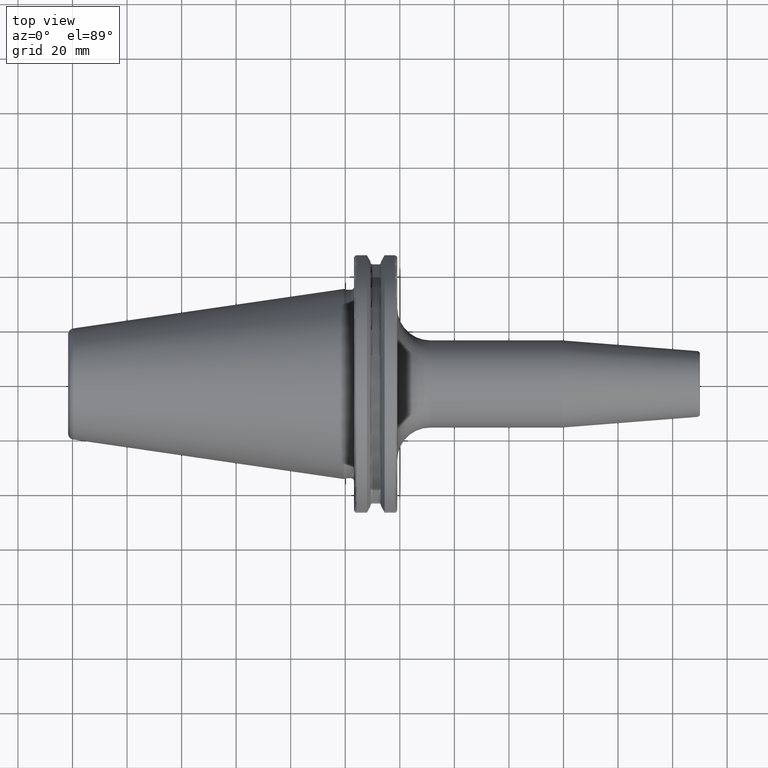
[diagram: clean part render]
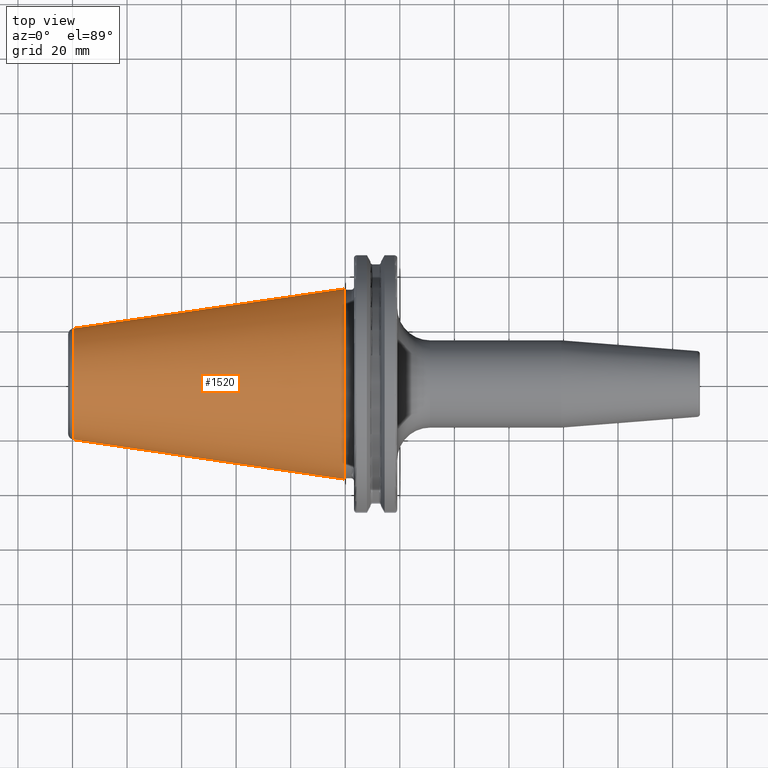
[diagram: same view with one face highlighted and labeled with its STEP entity id]
A machine part, top view. The second image highlights one B-rep face of the part: STEP entity #1520.
In plain terms, the highlighted conical surface has half-angle 8.298 deg.
Its self-contained STEP definition (entity closure, byte-faithful):
#37=CARTESIAN_POINT('',(-9.967471700563E1,0.E0,0.E0));
#38=DIRECTION('',(1.E0,0.E0,0.E0));
#39=DIRECTION('',(0.E0,1.E0,0.E0));
#40=AXIS2_PLACEMENT_3D('',#37,#38,#39);
#42=CARTESIAN_POINT('',(-4.896823332305E-1,0.E0,0.E0));
#43=DIRECTION('',(1.E0,0.E0,0.E0));
#44=DIRECTION('',(0.E0,1.E0,0.E0));
#45=AXIS2_PLACEMENT_3D('',#42,#43,#44);
#47=DIRECTION('',(-9.895312636440E-1,-1.443186691705E-1,0.E0));
#48=VECTOR('',#47,1.002343617797E2);
#49=CARTESIAN_POINT('',(-4.896823332305E-1,3.485358204157E1,0.E0));
#50=LINE('',#49,#48);
#51=DIRECTION('',(-9.895312636440E-1,1.443186691705E-1,0.E0));
#52=VECTOR('',#51,1.002343617797E2);
#53=CARTESIAN_POINT('',(-4.896823332305E-1,-3.485358204157E1,0.E0));
#54=LINE('',#53,#52);
#1206=CARTESIAN_POINT('',(-9.967471700563E1,2.038789234437E1,0.E0));
#1208=VERTEX_POINT('',#1206);
#1210=CARTESIAN_POINT('',(-9.967471700563E1,-2.038789234437E1,0.E0));
#1212=VERTEX_POINT('',#1210);
#1274=CARTESIAN_POINT('',(-4.896823332305E-1,3.485358204157E1,0.E0));
#1275=VERTEX_POINT('',#1274);
#1276=CARTESIAN_POINT('',(-4.896823332305E-1,-3.485358204157E1,0.E0));
#1277=VERTEX_POINT('',#1276);
#1506=CARTESIAN_POINT('',(-5.008219966943E1,0.E0,0.E0));
#1507=DIRECTION('',(1.E0,0.E0,0.E0));
#1508=DIRECTION('',(0.E0,-1.E0,0.E0));
#1509=AXIS2_PLACEMENT_3D('',#1506,#1507,#1508);
#1510=CONICAL_SURFACE('',#1509,2.762073719297E1,8.297826828206E0);
#1512=ORIENTED_EDGE('',*,*,#1511,.F.);
#1514=ORIENTED_EDGE('',*,*,#1513,.T.);
#1516=ORIENTED_EDGE('',*,*,#1515,.T.);
#1517=ORIENTED_EDGE('',*,*,#1499,.F.);
#1518=EDGE_LOOP('',(#1512,#1514,#1516,#1517));
#1519=FACE_OUTER_BOUND('',#1518,.F.);
#1520=ADVANCED_FACE('',(#1519),#1510,.T.);
#41=CIRCLE('',#40,2.038789234437E1);
#46=CIRCLE('',#45,3.485358204157E1);
#1499=EDGE_CURVE('',#1208,#1212,#41,.T.);
#1511=EDGE_CURVE('',#1275,#1208,#50,.T.);
#1513=EDGE_CURVE('',#1275,#1277,#46,.T.);
#1515=EDGE_CURVE('',#1277,#1212,#54,.T.);